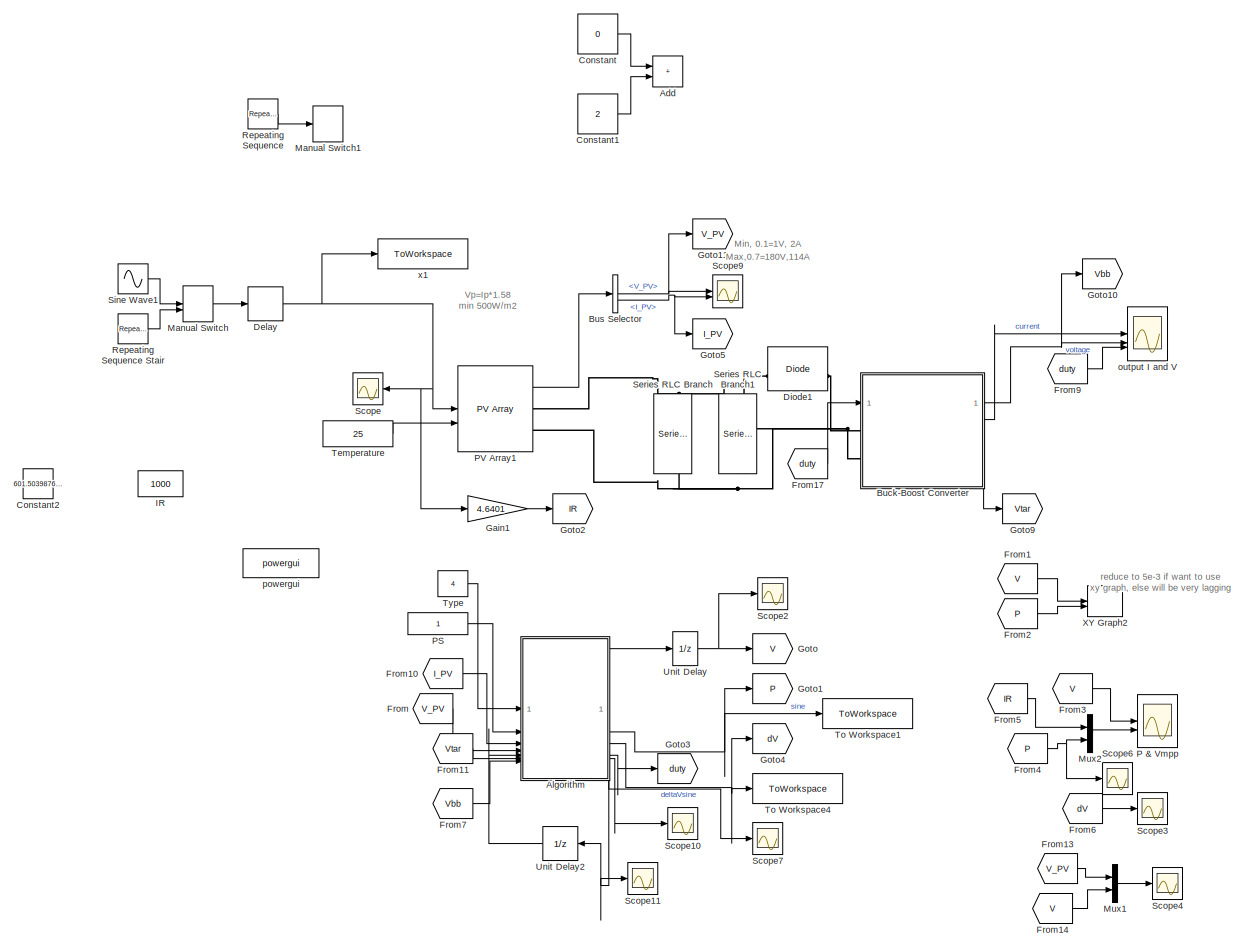
[diagram: root canvas - part 1/1, most of the canvas]
MODEL slx_7ec7bc37bccd
KIND model
CONFIG AbsTol = auto
CONFIG EnableMultiTasking = off
CONFIG FixedStep = 0.01
CONFIG MaxStep = auto
CONFIG MinStep = auto
CONFIG RelTol = 1e-3
CONFIG SampleTimeConstraint = Unconstrained
CONFIG SolverName = VariableStepAuto
CONFIG StartTime = 0.0
CONFIG StopTime = 20
BLOCK [Sum] Add
  IconShape = rectangular
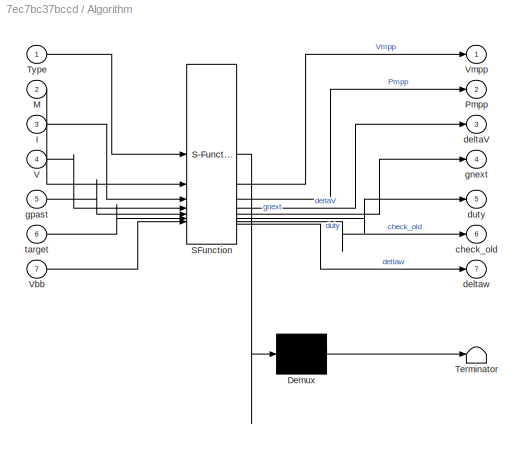
BLOCK [SubSystem] Algorithm
  ErrorFcn = Stateflow.Translate.translate
  NameLocation = top
  PermitHierarchicalResolution = ExplicitOnly
  SFBlockType = MATLAB Function
  TreatAsAtomicUnit = on
BLOCK [Demux] Algorithm/ Demux 
  Outputs = 1
BLOCK [S-Function] Algorithm/ SFunction 
  EnableBusSupport = on
  FunctionName = sf_sfun
  PortCounts = [7 8]
  SFcnIsStateOwnerBlock = off
  SFunctionDeploymentMode = off
  Tag = Stateflow S-Function 2
BLOCK [Terminator] Algorithm/ Terminator 
BLOCK [Inport] Algorithm/I
  Port = 3
BLOCK [Inport] Algorithm/M
  Port = 2
BLOCK [Outport] Algorithm/Pmpp
  Port = 2
BLOCK [Inport] Algorithm/Type
BLOCK [Inport] Algorithm/V
  Port = 4
BLOCK [Inport] Algorithm/Vbb
  Port = 7
BLOCK [Outport] Algorithm/Vmpp
BLOCK [Outport] Algorithm/check_old
  Port = 6
BLOCK [Outport] Algorithm/deltaV
  Port = 3
BLOCK [Outport] Algorithm/deltaw
  Port = 7
BLOCK [Outport] Algorithm/duty
  Port = 5
BLOCK [Outport] Algorithm/gnext
  Port = 4
BLOCK [Inport] Algorithm/gpast
  Port = 5
BLOCK [Inport] Algorithm/target
  Port = 6
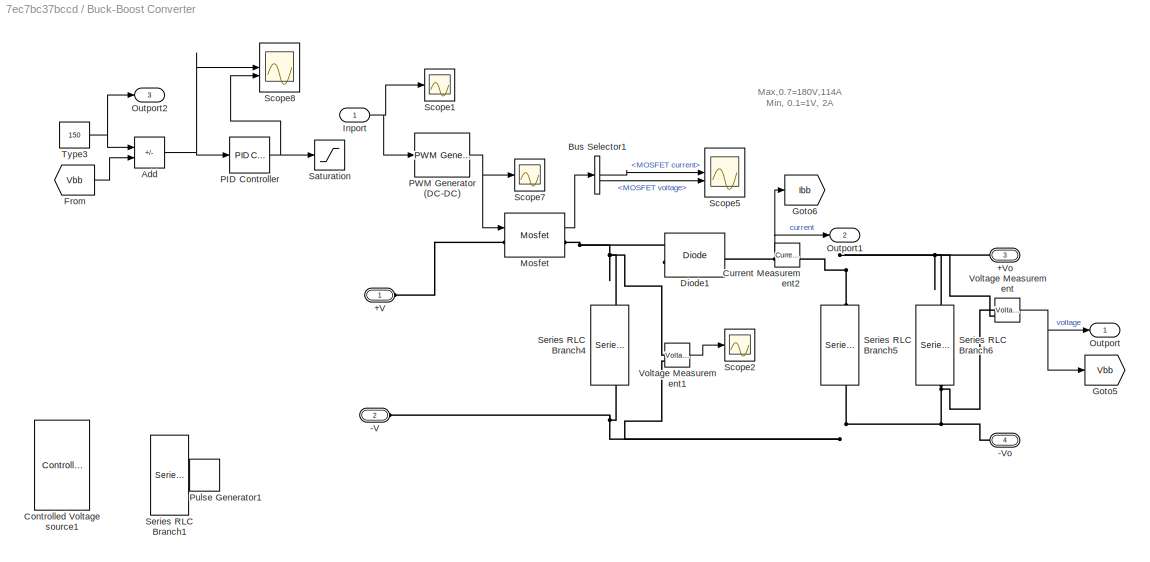
BLOCK [SubSystem] Buck-Boost Converter
  PortSchema = {"entries":[{"content":{"sides":[{"content":{"connectorIds":["LConn1","LConn2","In1"]},"type":"ConnectorPlacement.EquallySpacedRectSide","uuid":"434e697c-d5be-45e6-bdc1-8ae755998e80"},{"content":{"connectorIds":["Out1","Out2","RConn1","RConn2","Out3"],"side":"RIGHT"},"type":"ConnectorPlacement.EquallySpacedRectSide","uuid":"10395034-5ec3-4cb8-9f4e-a5ff74166f8a"},{"content":{"side":"TOP"},"type":"C...<+272ch>
BLOCK [PMIOPort] Buck-Boost Converter/+V
  Side = Left
BLOCK [PMIOPort] Buck-Boost Converter/+Vo
  Port = 3
  Side = Right
BLOCK [PMIOPort] Buck-Boost Converter/-V
  Port = 2
  Side = Left
BLOCK [PMIOPort] Buck-Boost Converter/-Vo
  Port = 4
  Side = Right
BLOCK [Sum] Buck-Boost Converter/Add
  IconShape = rectangular
  Inputs = +-
BLOCK [BusSelector] Buck-Boost Converter/Bus Selector1
  OutputSignals = MOSFET current,MOSFET voltage
BLOCK [Reference] Buck-Boost Converter/Controlled Voltage source1  REF=spsControlledVoltageSourceLib/Controlled Voltage Source
  Commented = on
  LibrarySourceBlock = sps_lib/Sources/Controlled Voltage Source
  NameLocation = top
  SourceBlock = spsControlledVoltageSourceLib/Controlled Voltage Source
  SourceType = Controlled Voltage Source
BLOCK [Reference] Buck-Boost Converter/Current Measurement2  REF=spsCurrentMeasurementLib/Current Measurement
  LibrarySourceBlock = sps_lib/Sensors and Measurements/Current Measurement
  SourceBlock = spsCurrentMeasurementLib/Current Measurement
  SourceType = Current Measurement
  UserDataPersistent = on
BLOCK [Reference] Buck-Boost Converter/Diode1  REF=spsDiodeLib/Diode
  LibrarySourceBlock = sps_lib/Power Electronics/Diode
  NameLocation = top
  SourceBlock = spsDiodeLib/Diode
  SourceType = Diode
BLOCK [From] Buck-Boost Converter/From
  GotoTag = Vbb
BLOCK [Goto] Buck-Boost Converter/Goto5
  GotoTag = Vbb
BLOCK [Goto] Buck-Boost Converter/Goto6
  GotoTag = Ibb
BLOCK [Inport] Buck-Boost Converter/Inport
BLOCK [Reference] Buck-Boost Converter/Mosfet  REF=spsMosfetLib/Mosfet
  LibrarySourceBlock = sps_lib/Power Electronics/Mosfet
  SourceBlock = spsMosfetLib/Mosfet
  SourceType = Mosfet
BLOCK [Outport] Buck-Boost Converter/Outport
BLOCK [Outport] Buck-Boost Converter/Outport1
  Port = 2
BLOCK [Outport] Buck-Boost Converter/Outport2
  Port = 3
BLOCK [Reference] Buck-Boost Converter/PID Controller  REF=slpidlib/PID Controller
  LibrarySourceBlock = simulink/Continuous/PID Controller
  SourceBlock = slpidlib/PID Controller
  SourceType = PID 1dof
BLOCK [Reference] Buck-Boost Converter/PWM Generator (DC-DC)  REF=spsPWMGeneratorDCDCLib/PWM Generator
(DC-DC)
  LibrarySourceBlock = sps_lib/Power Electronics/Power Electronics Control/PWM Generator\n(DC-DC)
  SourceBlock = spsPWMGeneratorDCDCLib/PWM Generator\n(DC-DC)
  SourceType = PWM Generator (DC-DC)
BLOCK [DiscretePulseGenerator] Buck-Boost Converter/Pulse Generator1
  Commented = on
  Period = 10
  PulseWidth = 8
  SampleTime = 5e-6
BLOCK [Saturate] Buck-Boost Converter/Saturation
  LowerLimit = 0
  UpperLimit = 0.8
BLOCK [Scope] Buck-Boost Converter/Scope1
  Floating = off
  NumInputPorts = 1
  ScopeSpecificationString = Simulink.scopes.TimeScopeBlockCfg('CurrentConfiguration', extmgr.ConfigurationSet(extmgr.Configuration('Core','General UI',true,'FigureColor',[1 1 1]),extmgr.Configuration('Core','Source UI',true),extmgr.Configuration('Sources','WiredSimulink',true,'DataLoggingVariableName','ScopeData1'),extmgr.Configuration('Visuals','Time Domain',true,'SerializedDisplays',{struct('MinYLimReal','0.00569','MaxYLim...<+1574ch>
BLOCK [Scope] Buck-Boost Converter/Scope2
  Floating = off
  NumInputPorts = 1
  ScopeSpecificationString = Simulink.scopes.TimeScopeBlockCfg('CurrentConfiguration', extmgr.ConfigurationSet(extmgr.Configuration('Core','General UI',true,'FigureColor',[1 1 1]),extmgr.Configuration('Core','Source UI',true),extmgr.Configuration('Sources','WiredSimulink',true,'DataLoggingVariableName','ScopeData2'),extmgr.Configuration('Visuals','Time Domain',true,'SerializedDisplays',{struct('MinYLimReal','-109.40831','MaxY...<+1569ch>
BLOCK [Scope] Buck-Boost Converter/Scope5
  Floating = off
  NumInputPorts = 2
  ScopeSpecificationString = Simulink.scopes.TimeScopeBlockCfg('CurrentConfiguration', extmgr.ConfigurationSet(extmgr.Configuration('Core','General UI',true,'FigureColor',[1 1 1]),extmgr.Configuration('Core','Source UI',true),extmgr.Configuration('Sources','WiredSimulink',true,'DataLoggingVariableName','ScopeData3'),extmgr.Configuration('Visuals','Time Domain',true,'SerializedDisplays',{struct('MinYLimReal','-6.70094','MaxYLi...<+2264ch>
BLOCK [Scope] Buck-Boost Converter/Scope7
  Floating = off
  NumInputPorts = 1
  ScopeSpecificationString = Simulink.scopes.TimeScopeBlockCfg('CurrentConfiguration', extmgr.ConfigurationSet(extmgr.Configuration('Core','General UI',true,'FigureColor',[1 1 1]),extmgr.Configuration('Core','Source UI',true),extmgr.Configuration('Sources','WiredSimulink',true,'DataLoggingVariableName','ScopeData5'),extmgr.Configuration('Visuals','Time Domain',true,'SerializedDisplays',{struct('MinYLimReal','-0.125','MaxYLimR...<+1546ch>
BLOCK [Scope] Buck-Boost Converter/Scope8
  Floating = off
  NumInputPorts = 2
  ScopeSpecificationString = Simulink.scopes.TimeScopeBlockCfg('CurrentConfiguration', extmgr.ConfigurationSet(extmgr.Configuration('Core','General UI',true,'FigureColor',[1 1 1]),extmgr.Configuration('Core','Source UI',true),extmgr.Configuration('Sources','WiredSimulink',true,'DataLoggingVariableName','ScopeData6'),extmgr.Configuration('Visuals','Time Domain',true,'SerializedDisplays',{struct('MinYLimReal','-33.77447','MaxYL...<+2241ch>
BLOCK [Reference] Buck-Boost Converter/Series RLC Branch1  REF=spsSeriesRLCBranchLib/Series RLC Branch
  Commented = on
  LibrarySourceBlock = sps_lib/Passives/Series RLC Branch
  NameLocation = right
  SourceBlock = spsSeriesRLCBranchLib/Series RLC Branch
  SourceType = Series RLC Branch
BLOCK [Reference] Buck-Boost Converter/Series RLC Branch4  REF=spsSeriesRLCBranchLib/Series RLC Branch
  LibrarySourceBlock = sps_lib/Passives/Series RLC Branch
  NameLocation = right
  SourceBlock = spsSeriesRLCBranchLib/Series RLC Branch
  SourceType = Series RLC Branch
BLOCK [Reference] Buck-Boost Converter/Series RLC Branch5  REF=spsSeriesRLCBranchLib/Series RLC Branch
  LibrarySourceBlock = sps_lib/Passives/Series RLC Branch
  NameLocation = right
  SourceBlock = spsSeriesRLCBranchLib/Series RLC Branch
  SourceType = Series RLC Branch
BLOCK [Reference] Buck-Boost Converter/Series RLC Branch6  REF=spsSeriesRLCBranchLib/Series RLC Branch
  LibrarySourceBlock = sps_lib/Passives/Series RLC Branch
  NameLocation = left
  SourceBlock = spsSeriesRLCBranchLib/Series RLC Branch
  SourceType = Series RLC Branch
BLOCK [Constant] Buck-Boost Converter/Type3
  SampleTime = 0
  Value = 150
BLOCK [Reference] Buck-Boost Converter/Voltage Measurement  REF=spsVoltageMeasurementLib/Voltage Measurement
  LibrarySourceBlock = sps_lib/Sensors and Measurements/Voltage Measurement
  SourceBlock = spsVoltageMeasurementLib/Voltage Measurement
  SourceType = Voltage Measurement
  UserDataPersistent = on
BLOCK [Reference] Buck-Boost Converter/Voltage Measurement1  REF=spsVoltageMeasurementLib/Voltage Measurement
  LibrarySourceBlock = sps_lib/Sensors and Measurements/Voltage Measurement
  SourceBlock = spsVoltageMeasurementLib/Voltage Measurement
  SourceType = Voltage Measurement
  UserDataPersistent = on
BLOCK [BusSelector] Bus Selector
  OutputSignals = V_PV,I_PV
BLOCK [Constant] Constant
  SampleTime = 1
  Value = 0
  VectorParams1D = off
BLOCK [Constant] Constant1
  SampleTime = 1
  Value = 2
  VectorParams1D = off
BLOCK [Constant] Constant2
  Commented = on
  Value = 601.5039876302083
BLOCK [Delay] Delay
  DelayLength = 5
  InputPortMap = u0
BLOCK [Reference] Diode1  REF=spsDiodeLib/Diode
  LibrarySourceBlock = sps_lib/Power Electronics/Diode
  SourceBlock = spsDiodeLib/Diode
  SourceType = Diode
BLOCK [From] From
  GotoTag = V_PV
BLOCK [From] From1
  Commented = on
  GotoTag = V
BLOCK [From] From10
  GotoTag = I_PV
BLOCK [From] From11
  GotoTag = Vtar
BLOCK [From] From13
  GotoTag = V_PV
BLOCK [From] From14
  GotoTag = V
BLOCK [From] From17
  GotoTag = duty
BLOCK [From] From2
  Commented = on
  GotoTag = P
BLOCK [From] From3
  GotoTag = V
BLOCK [From] From4
  GotoTag = P
BLOCK [From] From5
  GotoTag = IR
BLOCK [From] From6
  GotoTag = dV
BLOCK [From] From7
  GotoTag = Vbb
BLOCK [From] From9
  GotoTag = duty
BLOCK [Gain] Gain1
  Gain = 4.6401
BLOCK [Goto] Goto
  GotoTag = V
BLOCK [Goto] Goto1
  GotoTag = P
BLOCK [Goto] Goto10
  GotoTag = Vbb
BLOCK [Goto] Goto11
  GotoTag = V_PV
BLOCK [Goto] Goto2
  GotoTag = IR
BLOCK [Goto] Goto3
  GotoTag = duty
BLOCK [Goto] Goto4
  GotoTag = dV
BLOCK [Goto] Goto5
  GotoTag = I_PV
BLOCK [Goto] Goto9
  GotoTag = Vtar
BLOCK [Constant] IR
  Value = 1000
BLOCK [ManualSwitch] Manual Switch
BLOCK [ManualSwitch] Manual Switch1
BLOCK [Mux] Mux1
  DisplayOption = bar
  Inputs = 2
BLOCK [Mux] Mux2
  DisplayOption = bar
  Inputs = 2
BLOCK [Scope] P & Vmpp
  Floating = off
  NumInputPorts = 2
  ScopeSpecificationString = Simulink.scopes.TimeScopeBlockCfg('CurrentConfiguration', extmgr.ConfigurationSet(extmgr.Configuration('Core','General UI',true,'FigureColor',[0.862745098039216 0.862745098039216 0.862745098039216]),extmgr.Configuration('Core','Source UI',true),extmgr.Configuration('Sources','WiredSimulink',true,'DataLoggingSaveFormat','Structure','DataLoggingDecimation','1','DataLoggingDecimateData',true,'DataLog...<+4396ch>
BLOCK [Constant] PS
  SampleTime = 0
BLOCK [Reference] PV Array1  REF=spsPVArrayLib/PV Array
  LibrarySourceBlock = sps_lib/Sources/PV Array
  SourceBlock = spsPVArrayLib/PV Array
  SourceType = PV array
BLOCK [Reference] Repeating Sequence  REF=simulink/Sources/Repeating
Sequence
  Commented = on
  SourceBlock = simulink/Sources/Repeating\nSequence
  SourceType = Repeating table
BLOCK [Reference] Repeating Sequence Stair  REF=simulink/Sources/Repeating
Sequence
Stair
  SourceBlock = simulink/Sources/Repeating\nSequence\nStair
  SourceType = Repeating Sequence Stair
BLOCK [Scope] Scope
  Floating = off
  NumInputPorts = 1
  ScopeSpecificationString = Simulink.scopes.TimeScopeBlockCfg('CurrentConfiguration', extmgr.ConfigurationSet(extmgr.Configuration('Core','General UI',true,'FigureColor',[1 1 1]),extmgr.Configuration('Core','Source UI',true),extmgr.Configuration('Sources','WiredSimulink',true,'DataLoggingVariableName','ScopeData2'),extmgr.Configuration('Visuals','Time Domain',true,'SerializedDisplays',{struct('MinYLimReal','551.38735','MaxYL...<+1588ch>
BLOCK [Scope] Scope10
  Floating = off
  NumInputPorts = 1
  ScopeSpecificationString = Simulink.scopes.TimeScopeBlockCfg('CurrentConfiguration', extmgr.ConfigurationSet(extmgr.Configuration('Core','General UI',true,'FigureColor',[1 1 1]),extmgr.Configuration('Core','Source UI',true),extmgr.Configuration('Sources','WiredSimulink',true,'DataLoggingVariableName','ScopeData3'),extmgr.Configuration('Visuals','Time Domain',true,'SerializedDisplays',{struct('MinYLimReal','-0.125','MaxYLimR...<+1542ch>
BLOCK [Scope] Scope11
  Floating = off
  NumInputPorts = 1
  ScopeSpecificationString = Simulink.scopes.TimeScopeBlockCfg('CurrentConfiguration', extmgr.ConfigurationSet(extmgr.Configuration('Core','General UI',true,'FigureColor',[1 1 1]),extmgr.Configuration('Core','Source UI',true),extmgr.Configuration('Sources','WiredSimulink',true,'DataLoggingVariableName','ScopeData4'),extmgr.Configuration('Visuals','Time Domain',true,'SerializedDisplays',{struct('MinYLimReal','-17.44056','MaxYL...<+1560ch>
BLOCK [Scope] Scope2
  Floating = off
  NumInputPorts = 1
  ScopeSpecificationString = Simulink.scopes.TimeScopeBlockCfg('CurrentConfiguration', extmgr.ConfigurationSet(extmgr.Configuration('Core','General UI',true,'FigureColor',[1 1 1]),extmgr.Configuration('Core','Source UI',true),extmgr.Configuration('Sources','WiredSimulink',true,'DataLoggingVariableName','ScopeData5'),extmgr.Configuration('Visuals','Time Domain',true,'SerializedDisplays',{struct('MinYLimReal','-12.78457','MaxYL...<+1557ch>
BLOCK [Scope] Scope3
  Floating = off
  NumInputPorts = 1
  ScopeSpecificationString = Simulink.scopes.TimeScopeBlockCfg('CurrentConfiguration', extmgr.ConfigurationSet(extmgr.Configuration('Core','General UI',true,'FigureColor',[1 1 1]),extmgr.Configuration('Core','Source UI',true),extmgr.Configuration('Sources','WiredSimulink',true,'DataLoggingVariableName','ScopeData6'),extmgr.Configuration('Visuals','Time Domain',true,'SerializedDisplays',{struct('MinYLimReal','-1.00000','MaxYLi...<+1582ch>
BLOCK [Scope] Scope4
  Floating = off
  NumInputPorts = 1
  ScopeSpecificationString = Simulink.scopes.TimeScopeBlockCfg('CurrentConfiguration', extmgr.ConfigurationSet(extmgr.Configuration('Core','General UI',true,'FigureColor',[1 1 1]),extmgr.Configuration('Core','Source UI',true),extmgr.Configuration('Sources','WiredSimulink',true,'DataLoggingVariableName','ScopeData7'),extmgr.Configuration('Visuals','Time Domain',true,'SerializedDisplays',{struct('MinYLimReal','-35.28986','MaxYL...<+1577ch>
BLOCK [Scope] Scope6
  Floating = off
  NumInputPorts = 1
  ScopeSpecificationString = Simulink.scopes.TimeScopeBlockCfg('CurrentConfiguration', extmgr.ConfigurationSet(extmgr.Configuration('Core','General UI',true,'FigureColor',[1 1 1]),extmgr.Configuration('Core','Source UI',true),extmgr.Configuration('Sources','WiredSimulink',true,'DataLoggingVariableName','ScopeData8'),extmgr.Configuration('Visuals','Time Domain',true,'SerializedDisplays',{struct('MinYLimReal','-7880.92096','Max...<+1625ch>
BLOCK [Scope] Scope7
  Floating = off
  NumInputPorts = 1
  ScopeSpecificationString = Simulink.scopes.TimeScopeBlockCfg('CurrentConfiguration', extmgr.ConfigurationSet(extmgr.Configuration('Core','General UI',true,'FigureColor',[1 1 1]),extmgr.Configuration('Core','Source UI',true),extmgr.Configuration('Sources','WiredSimulink',true,'DataLoggingVariableName','ScopeData9'),extmgr.Configuration('Visuals','Time Domain',true,'SerializedDisplays',{struct('MinYLimReal','-0.00043','MaxYLi...<+1551ch>
BLOCK [Scope] Scope9
  Floating = off
  NumInputPorts = 2
  ScopeSpecificationString = Simulink.scopes.TimeScopeBlockCfg('CurrentConfiguration', extmgr.ConfigurationSet(extmgr.Configuration('Core','General UI',true,'FigureColor',[1 1 1]),extmgr.Configuration('Core','Source UI',true),extmgr.Configuration('Sources','WiredSimulink',true,'DataLoggingVariableName','ScopeData10'),extmgr.Configuration('Visuals','Time Domain',true,'SerializedDisplays',{struct('MinYLimReal','-9.1354','MaxYLi...<+2143ch>
BLOCK [Reference] Series RLC Branch  REF=spsSeriesRLCBranchLib/Series RLC Branch
  LibrarySourceBlock = sps_lib/Passives/Series RLC Branch
  NameLocation = left
  SourceBlock = spsSeriesRLCBranchLib/Series RLC Branch
  SourceType = Series RLC Branch
BLOCK [Reference] Series RLC Branch1  REF=spsSeriesRLCBranchLib/Series RLC Branch
  LibrarySourceBlock = sps_lib/Passives/Series RLC Branch
  NameLocation = left
  SourceBlock = spsSeriesRLCBranchLib/Series RLC Branch
  SourceType = Series RLC Branch
BLOCK [Sin] Sine Wave1
  Amplitude = 200
  Bias = 800
  Frequency = 3.14*3
  SampleTime = 1e-4
  Samples = 2
BLOCK [Constant] Temperature
  Value = 25
BLOCK [ToWorkspace] To Workspace1
  Commented = on
  FixptAsFi = on
  MaxDataPoints = inf
  SampleTime = -1
  SaveFormat = Timeseries
  VariableName = Psine
BLOCK [ToWorkspace] To Workspace4
  Commented = on
  FixptAsFi = on
  MaxDataPoints = inf
  SampleTime = -1
  SaveFormat = Timeseries
  VariableName = deltaVsine
BLOCK [Constant] Type
  SampleTime = 0
  Value = 4
BLOCK [UnitDelay] Unit Delay
  HasFrameUpgradeWarning = on
  InitialCondition = 0.1
  NameLocation = top
  SampleTime = 0.001
BLOCK [UnitDelay] Unit Delay2
  HasFrameUpgradeWarning = on
  InitialCondition = 0.1
  SampleTime = 0.001
BLOCK [Record] XY Graph2
  Commented = on
  CompatibilityTag = XY
  FileSettingsInternal = {"entries":[{"content":{"excelSettings":{"content":{},"type":"Streamout.ExcelSettings"}},"type":"Streamout.FileSettingStorage","uuid":""}],"packageUris":["http:\/\/schema.mathworks.com\/mf0\/streamout_blocks\/R2020a"],"version":"1.0"}
  Layout = [1 1]
  SignalsInternal = {"entries":[{"content":{},"type":"RecordBlkView.InputSignals","uuid":""}],"packageUris":["http:\/\/schema.mathworks.com\/mf0\/streamout_blocks\/R2020a"],"version":"1.0"}
  VisualizationBindings = {"xyplotplugin":{"info":[{"series":[],"subplotID":1}]}}
BLOCK [Scope] output I and V
  Floating = off
  NumInputPorts = 3
  ScopeSpecificationString = Simulink.scopes.TimeScopeBlockCfg('CurrentConfiguration', extmgr.ConfigurationSet(extmgr.Configuration('Core','General UI',true,'FigureColor',[0.862745098039216 0.862745098039216 0.862745098039216]),extmgr.Configuration('Core','Source UI',true),extmgr.Configuration('Sources','WiredSimulink',true,'DataLoggingSaveFormat','Structure','DataLoggingDecimation','1','DataLoggingDecimateData',true,'DataLog...<+4811ch>
BLOCK [Reference] powergui  REF=sps_lib/powergui
  LibrarySourceBlock = sps_lib/powergui
  Priority = 1
  SourceBlock = sps_lib/powergui
  SourceType = PSB option menu block
BLOCK [ToWorkspace] x1
  FixptAsFi = on
  MaxDataPoints = inf
  SampleTime = 1
  Save2DSignal = 2-D array (concatenate along first dimension)
  VariableName = x1
ANNOTATION (root): Max,0.7=180V,114A Min, 0.1=1V, 2A
ANNOTATION (root): Vp=Ip*1.58 min 500W/m2
ANNOTATION (root): reduce to 5e-3 if want to use xy graph, else will be very lagging
ANNOTATION Buck-Boost Converter: Max,0.7=180V,114A Min, 0.1=1V, 2A
LINE Algorithm:1 -> Unit Delay:1
NET Algorithm:2 -> Goto1:1, To Workspace1:1
NET Algorithm:3 -> Goto4:1, To Workspace4:1
NET Algorithm:4 -> Scope11:1, Unit Delay2:1
LINE Algorithm:5 -> Goto3:1
LINE Algorithm:6 -> Scope10:1
LINE Algorithm:7 -> Scope7:1
NET Buck-Boost Converter/Add:1 -> Buck-Boost Converter/PID Controller:1, Buck-Boost Converter/Scope8:1
LINE Buck-Boost Converter/Bus Selector1:1 -> Buck-Boost Converter/Scope5:1
LINE Buck-Boost Converter/Bus Selector1:2 -> Buck-Boost Converter/Scope5:2
NET Buck-Boost Converter/Current Measurement2:1 -> Buck-Boost Converter/Goto6:1, Buck-Boost Converter/Outport1:1
LINE Buck-Boost Converter/From:1 -> Buck-Boost Converter/Add:2
NET Buck-Boost Converter/Inport:1 -> Buck-Boost Converter/PWM Generator (DC-DC):1, Buck-Boost Converter/Scope1:1
LINE Buck-Boost Converter/Mosfet:1 -> Buck-Boost Converter/Bus Selector1:1
NET Buck-Boost Converter/PID Controller:1 -> Buck-Boost Converter/Saturation:1, Buck-Boost Converter/Scope8:2
NET Buck-Boost Converter/PWM Generator (DC-DC):1 -> Buck-Boost Converter/Mosfet:1, Buck-Boost Converter/Scope7:1
NET Buck-Boost Converter/Type3:1 -> Buck-Boost Converter/Add:1, Buck-Boost Converter/Outport2:1
LINE Buck-Boost Converter/Voltage Measurement1:1 -> Buck-Boost Converter/Scope2:1
NET Buck-Boost Converter/Voltage Measurement:1 -> Buck-Boost Converter/Goto5:1, Buck-Boost Converter/Outport:1
NET Buck-Boost Converter:1 -> Goto10:1, output I and V:2
LINE Buck-Boost Converter:2 -> output I and V:1
LINE Buck-Boost Converter:3 -> Goto9:1
NET Bus Selector:1 -> Goto11:1, Scope9:1
NET Bus Selector:2 -> Goto5:1, Scope9:2
LINE Constant1:1 -> Add:2
LINE Constant:1 -> Add:1
NET Delay:1 -> Gain1:1, PV Array1:1, Scope:1, x1:1
LINE From10:1 -> Algorithm:3
LINE From11:1 -> Algorithm:6
LINE From13:1 -> Mux1:1
LINE From14:1 -> Mux1:2
LINE From17:1 -> Buck-Boost Converter:1
LINE From1:1 -> XY Graph2:1
LINE From2:1 -> XY Graph2:2
LINE From3:1 -> P & Vmpp:1
NET From4:1 -> Mux2:2, Scope6:1
LINE From5:1 -> Mux2:1
LINE From6:1 -> Scope3:1
LINE From7:1 -> Algorithm:7
LINE From9:1 -> output I and V:3
LINE From:1 -> Algorithm:4
LINE Gain1:1 -> Goto2:1
LINE Manual Switch:1 -> Delay:1
LINE Mux1:1 -> Scope4:1
LINE Mux2:1 -> P & Vmpp:2
LINE PS:1 -> Algorithm:2
LINE PV Array1:1 -> Bus Selector:1
LINE Repeating Sequence Stair:1 -> Manual Switch:2
LINE Repeating Sequence:1 -> Manual Switch1:1
LINE Sine Wave1:1 -> Manual Switch:1
LINE Temperature:1 -> PV Array1:2
LINE Type:1 -> Algorithm:1
LINE Unit Delay2:1 -> Algorithm:5
NET Unit Delay:1 -> Goto:1, Scope2:1
PLINE Buck-Boost Converter/+V:RConn1 -- Buck-Boost Converter/Mosfet:LConn1
PNET net1: Buck-Boost Converter/+Vo:RConn1 -- Buck-Boost Converter/Current Measurement2:LConn1 -- Buck-Boost Converter/Series RLC Branch5:RConn1 -- Buck-Boost Converter/Series RLC Branch6:LConn1 -- Buck-Boost Converter/Voltage Measurement:LConn2
PNET net2: Buck-Boost Converter/-V:RConn1 -- Buck-Boost Converter/-Vo:RConn1 -- Buck-Boost Converter/Series RLC Branch4:RConn1 -- Buck-Boost Converter/Series RLC Branch5:LConn1 -- Buck-Boost Converter/Series RLC Branch6:RConn1 -- Buck-Boost Converter/Voltage Measurement1:LConn2 -- Buck-Boost Converter/Voltage Measurement:LConn1
PLINE Buck-Boost Converter/Current Measurement2:RConn1 -- Buck-Boost Converter/Diode1:LConn1
PNET net3: Buck-Boost Converter/Diode1:RConn1 -- Buck-Boost Converter/Mosfet:RConn1 -- Buck-Boost Converter/Series RLC Branch4:LConn1 -- Buck-Boost Converter/Voltage Measurement1:LConn1
PLINE Buck-Boost Converter:LConn1 -- Diode1:RConn1
PNET net4: Buck-Boost Converter:LConn2 -- PV Array1:RConn2 -- Series RLC Branch1:RConn1 -- Series RLC Branch:RConn1
PNET net5: Diode1:LConn1 -- PV Array1:RConn1 -- Series RLC Branch1:LConn1 -- Series RLC Branch:LConn1
note: NET lines group one-source signal fan-out (src -> all destinations, sorted); 1:1 wires keep LINE; PNET lines group multi-terminal physical nets as a canonical sorted terminal list (undirected conserving connections); 2-terminal nets keep the pairwise PLINE form
CHART Algorithm states=1 transitions=1
  STATE_LABEL 'eML_blk_kernel()'
  STATE_LABEL 'SCRIPT:\nfunction [Vmpp,Pmpp,deltaV, gnext, duty, check_old,deltaw] = MPPT(Type,M,I,V,gpast, target, Vbb)\n%% MPPT TESTER FUNCTION\n% Select one of the following Perturb & Observe algorithms, by setting Type\n% Type=1 for FIXED STEP SIZE\n% Type=2 for dP/dV STEP SIZE\n% Type=3 for Auto-Scaling\n% V input = PV array terminal voltage (V)\n% I input = PV array current (A)\n%%\n\nduty_init = 0.1;\ncheck=0;\n% min ...<+3460ch>'
CHART  states=0 transitions=0
